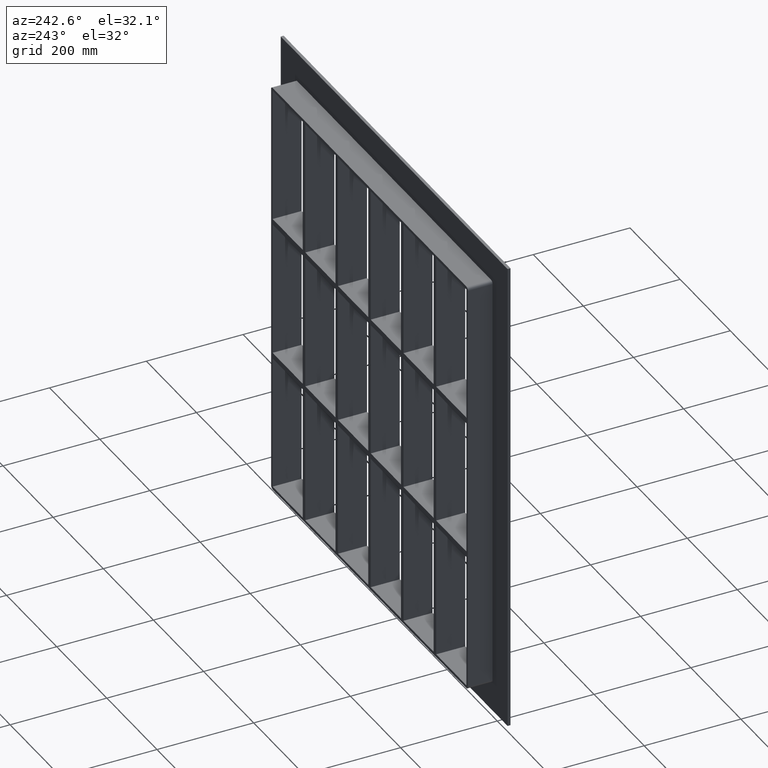
[diagram: clean part render]
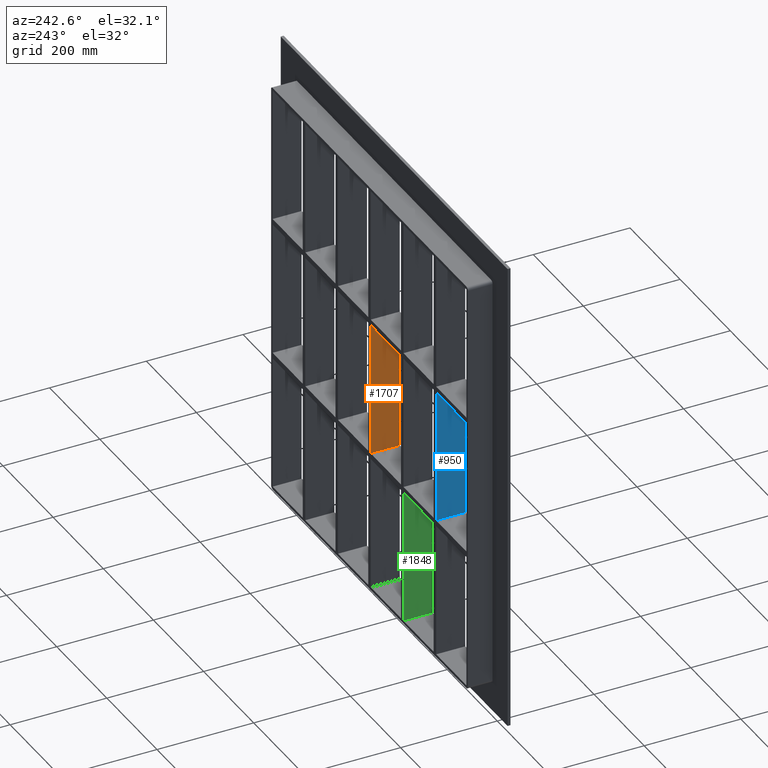
[diagram: same view with three faces highlighted in distinct colors, each labeled with its STEP entity id]
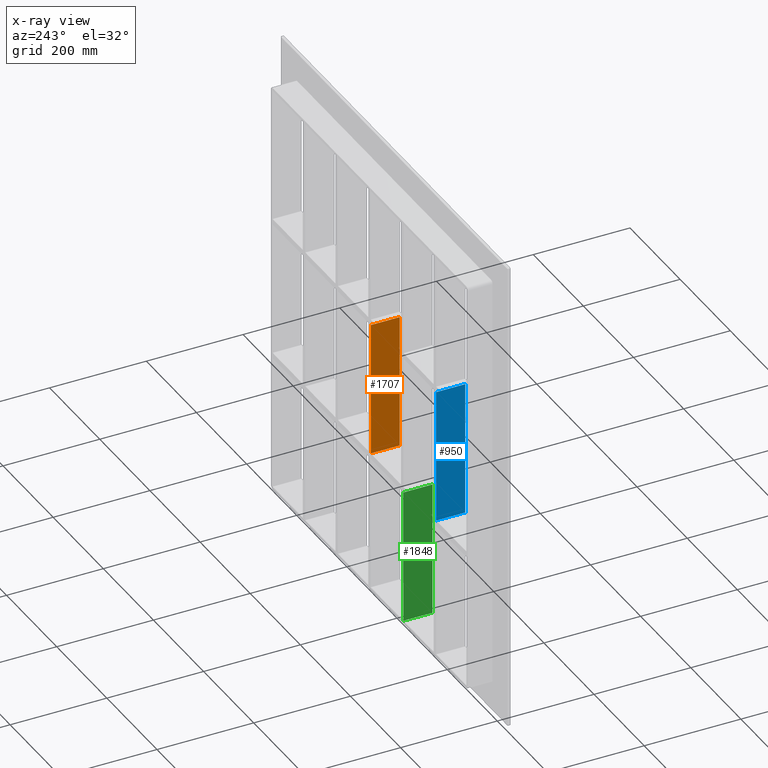
[diagram: x-ray of the same camera — body ghosted, the three highlighted faces saturated]
A machine part, auxiliary view with three faces highlighted in distinct colors.
The next image is the same camera in x-ray (body ghosted, the three faces saturated) — at least one of them is partly hidden behind the body in this view.
Their STEP definitions:

[orange] entity #1707 — the highlighted planar face has unit normal (-1, 0, 0).
#153=CARTESIAN_POINT('',(-5.000000000001421,-3.0,138.99999999999071));
#154=VERTEX_POINT('',#153);
#155=CARTESIAN_POINT('',(-5.000000000001421,57.0,138.99999999999071));
#156=VERTEX_POINT('',#155);
#157=CARTESIAN_POINT('',(-5.000000000001386,-3.0,138.99999999999073));
#158=DIRECTION('',(0.0,1.0,0.0));
#159=VECTOR('',#158,60.0);
#160=LINE('',#157,#159);
#161=EDGE_CURVE('',#154,#156,#160,.T.);
#1207=CARTESIAN_POINT('',(-5.000000000001375,57.0,-139.00000000000006));
#1208=VERTEX_POINT('',#1207);
#1215=CARTESIAN_POINT('',(-5.000000000001374,57.0,-139.00000000000006));
#1216=DIRECTION('',(0.0,0.0,1.0));
#1217=VECTOR('',#1216,277.99999999999068);
#1218=LINE('',#1215,#1217);
#1219=EDGE_CURVE('',#1208,#156,#1218,.T.);
#1684=CARTESIAN_POINT('',(-5.00000000000135,-3.0,-429.00000000000006));
#1685=DIRECTION('',(-1.0,0.0,0.0));
#1686=DIRECTION('',(0.0,0.0,1.0));
#1687=AXIS2_PLACEMENT_3D('',#1684,#1685,#1686);
#1688=PLANE('',#1687);
#1689=ORIENTED_EDGE('',*,*,#161,.T.);
#1690=ORIENTED_EDGE('',*,*,#1219,.F.);
#1691=CARTESIAN_POINT('',(-5.000000000001375,-3.0,-139.00000000000006));
#1692=VERTEX_POINT('',#1691);
#1693=CARTESIAN_POINT('',(-5.000000000001363,-3.0,-139.00000000000006));
#1694=DIRECTION('',(0.0,1.0,0.0));
#1695=VECTOR('',#1694,60.0);
#1696=LINE('',#1693,#1695);
#1697=EDGE_CURVE('',#1692,#1208,#1696,.T.);
#1698=ORIENTED_EDGE('',*,*,#1697,.F.);
#1699=CARTESIAN_POINT('',(-5.000000000001374,-3.0,-139.00000000000006));
#1700=DIRECTION('',(0.0,0.0,1.0));
#1701=VECTOR('',#1700,277.99999999999068);
#1702=LINE('',#1699,#1701);
#1703=EDGE_CURVE('',#1692,#154,#1702,.T.);
#1704=ORIENTED_EDGE('',*,*,#1703,.T.);
#1705=EDGE_LOOP('',(#1689,#1690,#1698,#1704));
#1706=FACE_OUTER_BOUND('',#1705,.T.);
#1707=ADVANCED_FACE('',(#1706),#1688,.T.);

[blue] entity #950 — the highlighted planar face has unit normal (-1, 0, 0).
#73=CARTESIAN_POINT('',(-266.00000000000142,-3.0,138.99999999999068));
#74=VERTEX_POINT('',#73);
#75=CARTESIAN_POINT('',(-266.00000000000142,57.0,138.99999999999068));
#76=VERTEX_POINT('',#75);
#77=CARTESIAN_POINT('',(-266.00000000000142,-3.0,138.99999999999071));
#78=DIRECTION('',(0.0,1.0,0.0));
#79=VECTOR('',#78,60.0);
#80=LINE('',#77,#79);
#81=EDGE_CURVE('',#74,#76,#80,.T.);
#920=CARTESIAN_POINT('',(-266.00000000000136,-3.0,-429.00000000000006));
#921=DIRECTION('',(-1.0,0.0,0.0));
#922=DIRECTION('',(0.0,0.0,1.0));
#923=AXIS2_PLACEMENT_3D('',#920,#921,#922);
#924=PLANE('',#923);
#925=ORIENTED_EDGE('',*,*,#81,.T.);
#926=CARTESIAN_POINT('',(-266.00000000000136,57.0,-139.00000000000006));
#927=VERTEX_POINT('',#926);
#928=CARTESIAN_POINT('',(-266.00000000000136,57.0,-139.00000000000006));
#929=DIRECTION('',(0.0,0.0,1.0));
#930=VECTOR('',#929,277.99999999999068);
#931=LINE('',#928,#930);
#932=EDGE_CURVE('',#927,#76,#931,.T.);
#933=ORIENTED_EDGE('',*,*,#932,.F.);
#934=CARTESIAN_POINT('',(-266.00000000000136,-3.0,-139.00000000000006));
#935=VERTEX_POINT('',#934);
#936=CARTESIAN_POINT('',(-266.00000000000142,57.0,-139.00000000000006));
#937=DIRECTION('',(0.0,-1.0,0.0));
#938=VECTOR('',#937,60.0);
#939=LINE('',#936,#938);
#940=EDGE_CURVE('',#927,#935,#939,.T.);
#941=ORIENTED_EDGE('',*,*,#940,.T.);
#942=CARTESIAN_POINT('',(-266.00000000000136,-3.0,-139.00000000000006));
#943=DIRECTION('',(0.0,0.0,1.0));
#944=VECTOR('',#943,277.99999999999068);
#945=LINE('',#942,#944);
#946=EDGE_CURVE('',#935,#74,#945,.T.);
#947=ORIENTED_EDGE('',*,*,#946,.T.);
#948=EDGE_LOOP('',(#925,#933,#941,#947));
#949=FACE_OUTER_BOUND('',#948,.T.);
#950=ADVANCED_FACE('',(#949),#924,.T.);

[green] entity #1848 — the highlighted planar face has unit normal (-1, 0, 0).
#1282=CARTESIAN_POINT('',(-135.50000000000136,57.0,-429.00000000000006));
#1283=VERTEX_POINT('',#1282);
#1284=CARTESIAN_POINT('',(-135.50000000000136,57.0,-151.00000000000929));
#1285=VERTEX_POINT('',#1284);
#1286=CARTESIAN_POINT('',(-135.50000000000136,57.0,-429.00000000000006));
#1287=DIRECTION('',(0.0,0.0,1.0));
#1288=VECTOR('',#1287,277.99999999999079);
#1289=LINE('',#1286,#1288);
#1290=EDGE_CURVE('',#1283,#1285,#1289,.T.);
#1818=CARTESIAN_POINT('',(-135.50000000000136,-3.0,-429.00000000000006));
#1819=DIRECTION('',(-1.0,0.0,0.0));
#1820=DIRECTION('',(0.0,0.0,1.0));
#1821=AXIS2_PLACEMENT_3D('',#1818,#1819,#1820);
#1822=PLANE('',#1821);
#1823=CARTESIAN_POINT('',(-135.50000000000136,-3.0,-151.00000000000929));
#1824=VERTEX_POINT('',#1823);
#1825=CARTESIAN_POINT('',(-135.50000000000139,57.0,-151.00000000000929));
#1826=DIRECTION('',(0.0,-1.0,0.0));
#1827=VECTOR('',#1826,60.0);
#1828=LINE('',#1825,#1827);
#1829=EDGE_CURVE('',#1285,#1824,#1828,.T.);
#1830=ORIENTED_EDGE('',*,*,#1829,.F.);
#1831=ORIENTED_EDGE('',*,*,#1290,.F.);
#1832=CARTESIAN_POINT('',(-135.50000000000136,-3.0,-429.00000000000006));
#1833=VERTEX_POINT('',#1832);
#1834=CARTESIAN_POINT('',(-135.50000000000136,-3.0,-429.00000000000006));
#1835=DIRECTION('',(0.0,1.0,0.0));
#1836=VECTOR('',#1835,60.000000000000007);
#1837=LINE('',#1834,#1836);
#1838=EDGE_CURVE('',#1833,#1283,#1837,.T.);
#1839=ORIENTED_EDGE('',*,*,#1838,.F.);
#1840=CARTESIAN_POINT('',(-135.50000000000136,-3.0,-429.00000000000006));
#1841=DIRECTION('',(0.0,0.0,1.0));
#1842=VECTOR('',#1841,277.99999999999079);
#1843=LINE('',#1840,#1842);
#1844=EDGE_CURVE('',#1833,#1824,#1843,.T.);
#1845=ORIENTED_EDGE('',*,*,#1844,.T.);
#1846=EDGE_LOOP('',(#1830,#1831,#1839,#1845));
#1847=FACE_OUTER_BOUND('',#1846,.T.);
#1848=ADVANCED_FACE('',(#1847),#1822,.T.);